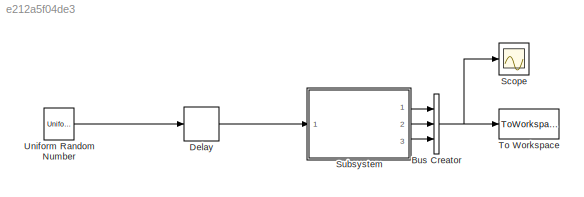
MODEL slx_e212a5f04de3
KIND model
CONFIG AbsTol = auto
CONFIG EnableMultiTasking = off
CONFIG FixedStep = ts
CONFIG MaxStep = auto
CONFIG MinStep = auto
CONFIG RelTol = 1e-3
CONFIG SampleTimeConstraint = Unconstrained
CONFIG Solver = FixedStepAuto
CONFIG SolverName = FixedStepAuto
CONFIG StartTime = 0.0
CONFIG StopTime = t_end
BLOCK [BusCreator] Bus Creator
  DisplayOption = bar
  InheritFromInputs = on
  Inputs = 3
  Ports = [3, 1]
BLOCK [Delay] Delay
  DelayLength = 20/sp_ts
  InputPortMap = u0
  Ports = [1, 1]
  SampleTime = sp_ts
BLOCK [Scope] Scope
  Floating = off
  NumInputPorts = 1
  Ports = [1]
  ScopeSpecificationString = Simulink.scopes.TimeScopeBlockCfg('CurrentConfiguration', extmgr.ConfigurationSet(extmgr.Configuration('Core','General UI',true),extmgr.Configuration('Core','Source UI',true),extmgr.Configuration('Sources','WiredSimulink',true,'DataLoggingVariableName','ScopeData1'),extmgr.Configuration('Visuals','Time Domain',true,'SerializedDisplays',{struct('MinYLimReal','-75.40715','MaxYLimReal','75.40715','YL...<+1457ch>
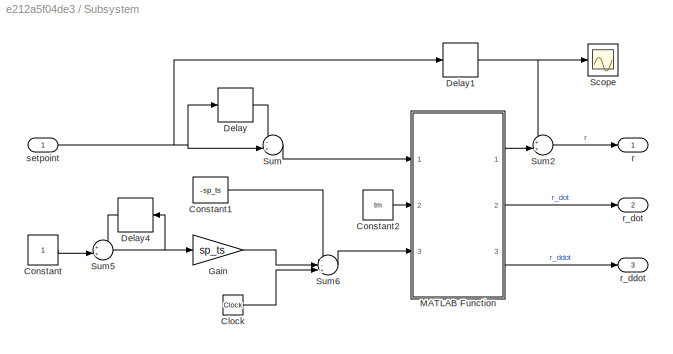
BLOCK [SubSystem] Subsystem
  Ports = [1, 3]
  RequestExecContextInheritance = off
BLOCK [Clock] Subsystem/Clock
BLOCK [Constant] Subsystem/Constant
  SampleTime = sp_ts
BLOCK [Constant] Subsystem/Constant1
  SampleTime = sp_ts
  Value = -sp_ts
BLOCK [Constant] Subsystem/Constant2
  SampleTime = sp_ts
  Value = tm
BLOCK [Delay] Subsystem/Delay
  DelayLength = 1
  InitialCondition = 0
  InputPortMap = u0
  Ports = [1, 1]
  SampleTime = sp_ts
BLOCK [Delay] Subsystem/Delay1
  DelayLength = 1
  InitialCondition = 0
  InputPortMap = u0
  Ports = [1, 1]
  SampleTime = sp_ts
BLOCK [Delay] Subsystem/Delay4
  DelayLength = 1
  InitialCondition = 0
  InputPortMap = u0
  Ports = [1, 1]
  SampleTime = sp_ts
BLOCK [Gain] Subsystem/Gain
  Gain = sp_ts
  OutDataTypeStr = Inherit: Inherit via internal rule
  ParamDataTypeStr = Inherit: Inherit via internal rule
  SaturateOnIntegerOverflow = off
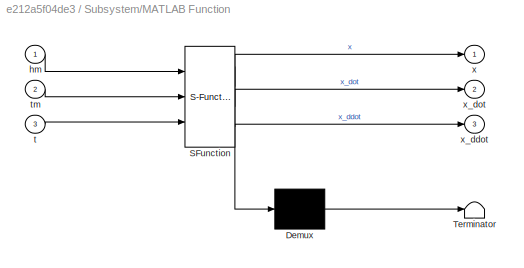
BLOCK [SubSystem] Subsystem/MATLAB Function
  ErrorFcn = Stateflow.Translate.translate
  PermitHierarchicalResolution = ExplicitOnly
  Ports = [3, 3]
  RequestExecContextInheritance = off
  SFBlockType = MATLAB Function
  TreatAsAtomicUnit = on
BLOCK [Demux] Subsystem/MATLAB Function/ Demux 
  Outputs = 1
  Ports = [1, 1]
BLOCK [S-Function] Subsystem/MATLAB Function/ SFunction 
  EnableBusSupport = on
  FunctionName = sf_sfun
  PortCounts = [3 4]
  Ports = [3, 4]
  SFcnIsStateOwnerBlock = off
  SFunctionDeploymentMode = off
  Tag = Stateflow S-Function skewSine 13
BLOCK [Terminator] Subsystem/MATLAB Function/ Terminator 
BLOCK [Inport] Subsystem/MATLAB Function/hm
  IconDisplay = Port number
BLOCK [Inport] Subsystem/MATLAB Function/t
  IconDisplay = Port number
  Port = 3
BLOCK [Inport] Subsystem/MATLAB Function/tm
  IconDisplay = Port number
  Port = 2
BLOCK [Outport] Subsystem/MATLAB Function/x
  IconDisplay = Port number
BLOCK [Outport] Subsystem/MATLAB Function/x_ddot
  IconDisplay = Port number
  Port = 3
BLOCK [Outport] Subsystem/MATLAB Function/x_dot
  IconDisplay = Port number
  Port = 2
BLOCK [Scope] Subsystem/Scope
  Floating = off
  NumInputPorts = 1
  Ports = [1]
  ScopeSpecificationString = Simulink.scopes.TimeScopeBlockCfg('CurrentConfiguration', extmgr.ConfigurationSet(extmgr.Configuration('Core','General UI',true),extmgr.Configuration('Core','Source UI',true),extmgr.Configuration('Sources','WiredSimulink',true,'DataLoggingVariableName','ScopeData1'),extmgr.Configuration('Visuals','Time Domain',true,'SerializedDisplays',{struct('MinYLimReal','-12.40222','MaxYLimReal','11.97255','YL...<+1371ch>
BLOCK [Sum] Subsystem/Sum
  IconShape = round
  InputSameDT = off
  Inputs = -+|
  OutDataTypeStr = Inherit: Inherit via internal rule
  Ports = [2, 1]
  SaturateOnIntegerOverflow = off
BLOCK [Sum] Subsystem/Sum2
  IconShape = round
  InputSameDT = off
  Inputs = ++|
  OutDataTypeStr = Inherit: Inherit via internal rule
  Ports = [2, 1]
  SaturateOnIntegerOverflow = off
BLOCK [Sum] Subsystem/Sum5
  IconShape = round
  InputSameDT = off
  Inputs = ++|
  OutDataTypeStr = Inherit: Inherit via internal rule
  Ports = [2, 1]
  SaturateOnIntegerOverflow = off
BLOCK [Sum] Subsystem/Sum6
  IconShape = round
  InputSameDT = off
  Inputs = --+|
  OutDataTypeStr = Inherit: Inherit via internal rule
  Ports = [3, 1]
  SaturateOnIntegerOverflow = off
BLOCK [Outport] Subsystem/r
  IconDisplay = Port number
BLOCK [Outport] Subsystem/r_ddot
  IconDisplay = Port number
  Port = 3
BLOCK [Outport] Subsystem/r_dot
  IconDisplay = Port number
  Port = 2
BLOCK [Inport] Subsystem/setpoint
  IconDisplay = Port number
BLOCK [ToWorkspace] To Workspace
  FixptAsFi = on
  MaxDataPoints = inf
  Ports = [1]
  SampleTime = -1
  Save2DSignal = 3-D array (concatenate along third dimension)
  SaveFormat = Timeseries
  VariableName = ref
BLOCK [UniformRandomNumber] Uniform Random Number
  Maximum = ampl
  Minimum = -ampl
  SampleTime = sp_ts
  Seed = seed
NET Bus Creator:1 -> Scope:1, To Workspace:1
LINE Delay:1 -> Subsystem:1
LINE Subsystem/Clock:1 -> Subsystem/Sum6:3
LINE Subsystem/Constant1:1 -> Subsystem/Sum6:1
LINE Subsystem/Constant2:1 -> Subsystem/MATLAB Function:2
LINE Subsystem/Constant:1 -> Subsystem/Sum5:2
NET Subsystem/Delay1:1 -> Subsystem/Scope:1, Subsystem/Sum2:1
LINE Subsystem/Delay4:1 -> Subsystem/Sum5:1
LINE Subsystem/Delay:1 -> Subsystem/Sum:1
LINE Subsystem/Gain:1 -> Subsystem/Sum6:2
LINE Subsystem/MATLAB Function:1 -> Subsystem/Sum2:2
LINE Subsystem/MATLAB Function:2 -> Subsystem/r_dot:1
LINE Subsystem/MATLAB Function:3 -> Subsystem/r_ddot:1
LINE Subsystem/Sum2:1 -> Subsystem/r:1
NET Subsystem/Sum5:1 -> Subsystem/Delay4:1, Subsystem/Gain:1
LINE Subsystem/Sum6:1 -> Subsystem/MATLAB Function:3
LINE Subsystem/Sum:1 -> Subsystem/MATLAB Function:1
NET Subsystem/setpoint:1 -> Subsystem/Delay1:1, Subsystem/Delay:1, Subsystem/Sum:2
LINE Subsystem:1 -> Bus Creator:1
LINE Subsystem:2 -> Bus Creator:2
LINE Subsystem:3 -> Bus Creator:3
LINE Uniform Random Number:1 -> Delay:1
note: NET lines group one-source signal fan-out (src -> all destinations, sorted); 1:1 wires keep LINE
CHART Subsystem/MATLAB Function states=1 transitions=1
  STATE_LABEL 'eML_blk_kernel()'
  STATE_LABEL 'SCRIPT:\nfunction [x,x_dot,x_ddot] = skewSine(hm,tm,t)\n\nif (t>=0) && (t<=tm)\n    x      = hm/tm*t - hm/(2*pi)*sin(2*pi/tm*t);\n    x_dot  = hm/tm - hm/tm*cos(2*pi/tm*t);\n    x_ddot = 2*pi*hm/(tm^2)*sin(2*pi/tm*t);\nelse\n    x      = hm;\n    x_dot  = 0;\n    x_ddot = 0;\nend\n\n'
